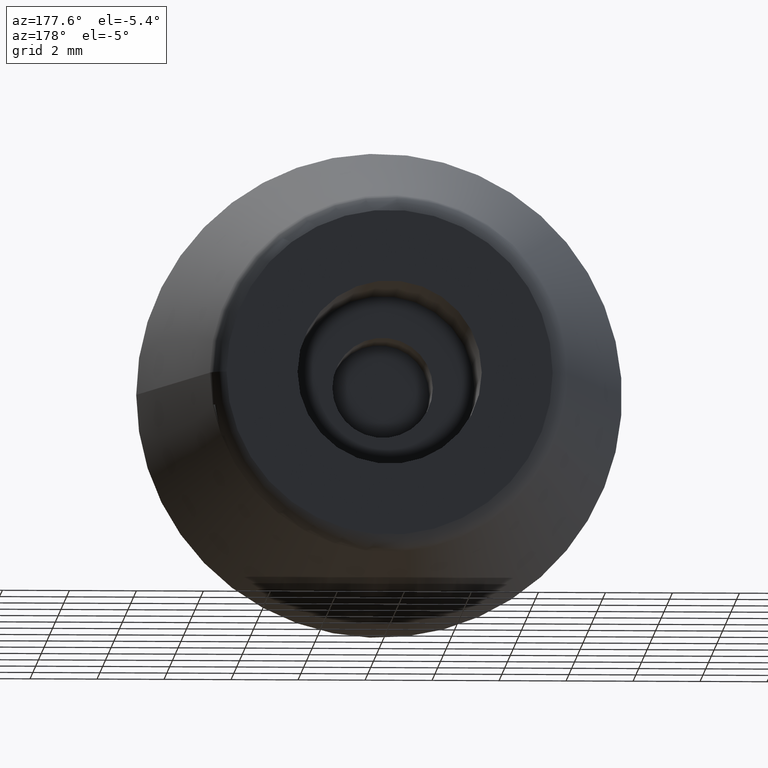
[diagram: clean part render]
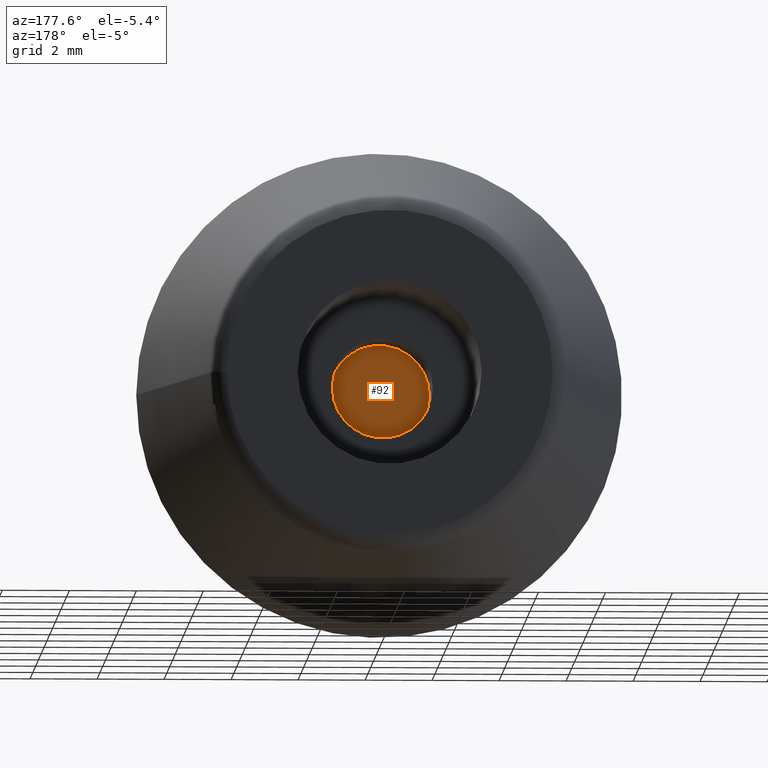
[diagram: same view with one face highlighted and labeled with its STEP entity id]
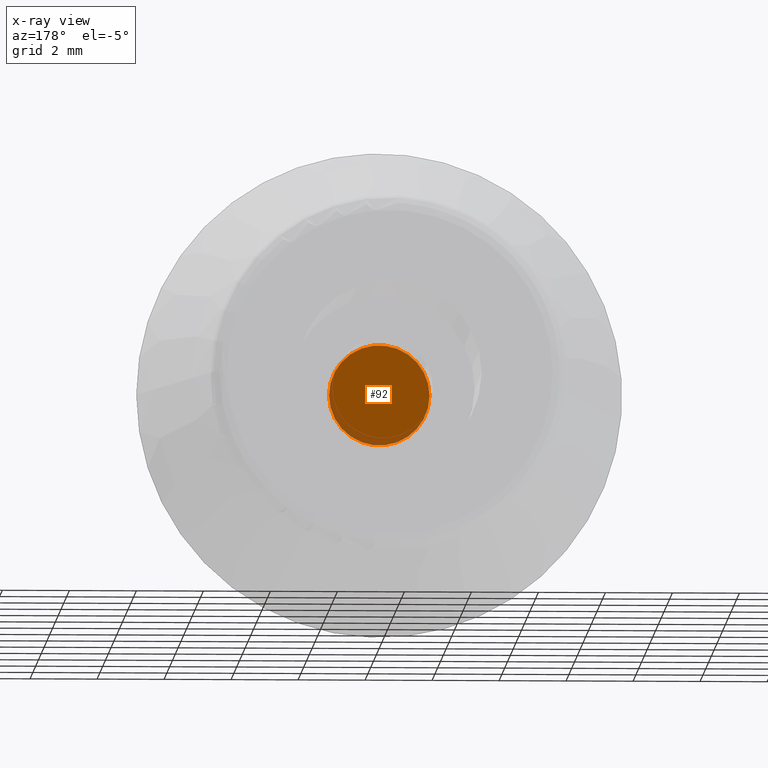
[diagram: x-ray of the same camera — body ghosted, the highlighted face saturated]
A machine part, auxiliary view. The second image highlights one B-rep face of the part: STEP entity #92.
The next image is the same camera in x-ray: the body ghosted, the highlighted face saturated — about 11% of this face is hidden behind the body in this view.
In plain terms, the highlighted planar face has unit normal (0, 1, 0).
Its self-contained STEP definition (entity closure, byte-faithful):
#20=PLANE('',#109);
#34=FACE_OUTER_BOUND('',#48,.T.);
#48=EDGE_LOOP('',(#83));
#56=CIRCLE('',#108,1.5);
#63=VERTEX_POINT('',#162);
#70=EDGE_CURVE('',#63,#63,#56,.T.);
#83=ORIENTED_EDGE('',*,*,#70,.T.);
#92=ADVANCED_FACE('',(#34),#20,.T.);
#108=AXIS2_PLACEMENT_3D('',#163,#137,#138);
#109=AXIS2_PLACEMENT_3D('',#164,#139,#140);
#137=DIRECTION('center_axis',(0.,1.,0.));
#138=DIRECTION('ref_axis',(1.,0.,0.));
#139=DIRECTION('center_axis',(0.,1.,0.));
#140=DIRECTION('ref_axis',(1.,0.,0.));
#162=CARTESIAN_POINT('',(1.5,0.099999999999999,0.));
#163=CARTESIAN_POINT('Origin',(0.,0.099999999999999,0.));
#164=CARTESIAN_POINT('Origin',(0.,0.099999999999999,0.));